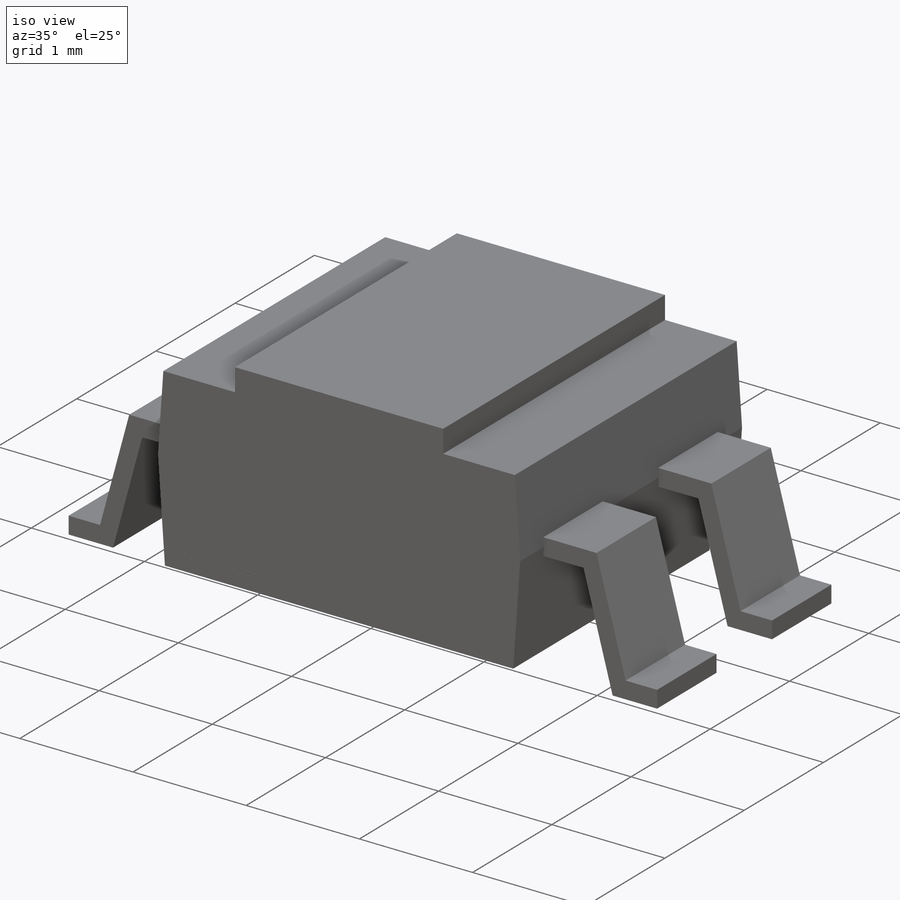
[diagram: iso view]
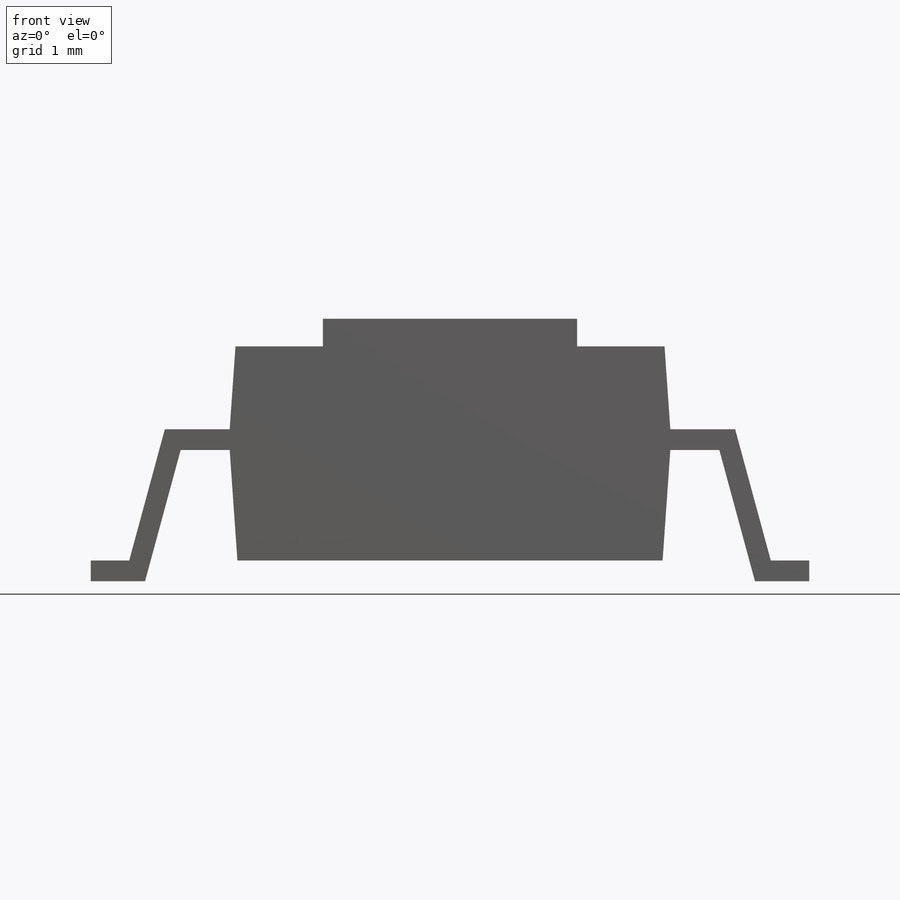
[diagram: front view]
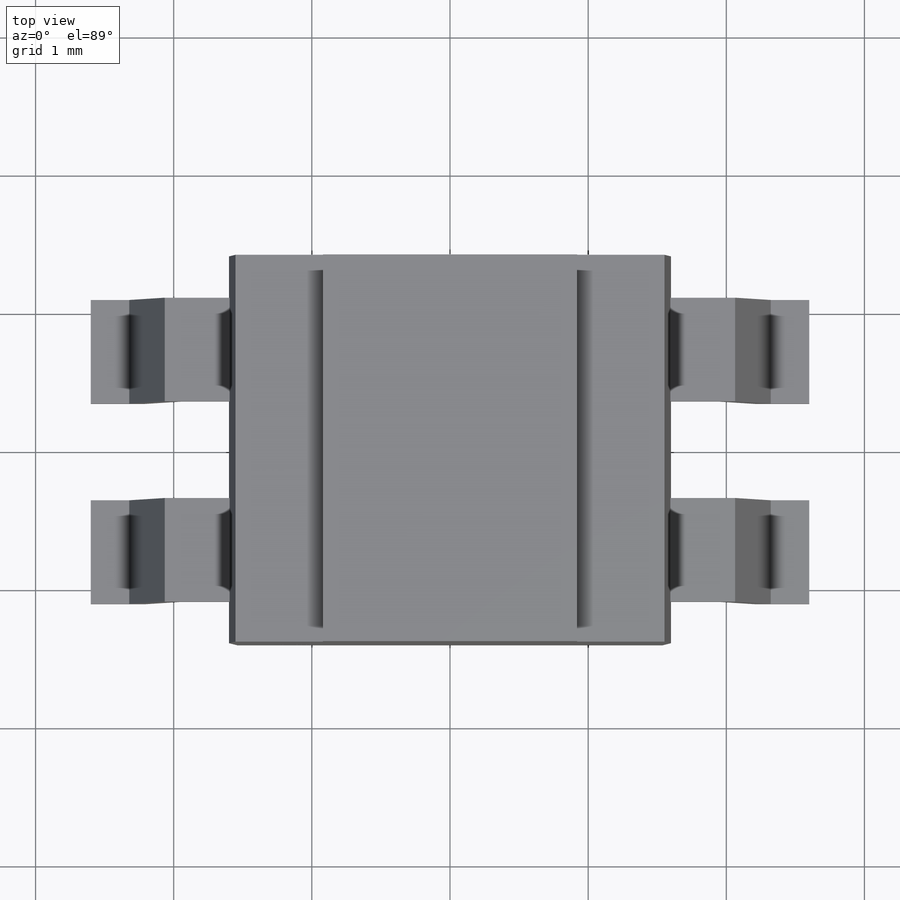
[diagram: top view]
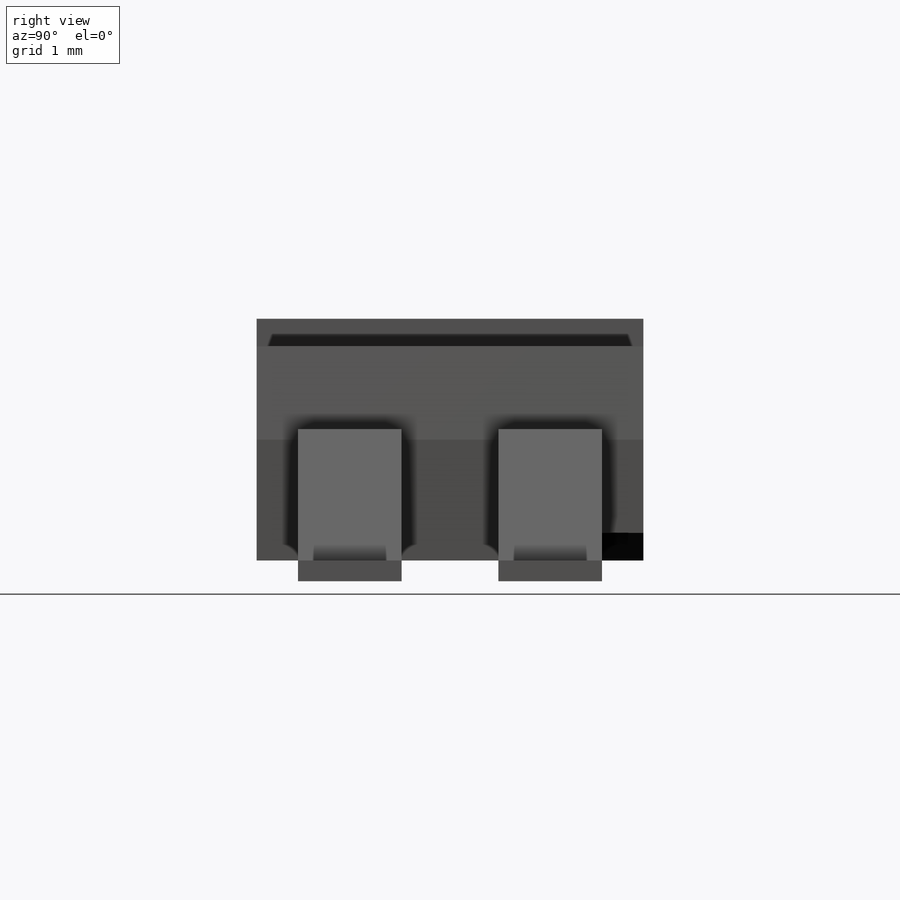
[diagram: right view]
SOLIDWORKS PART (.sldprt)
format: sldprt  version: not decoded by parser v0  size: 602,624 bytes
history: native  units: mm
features: sketch x6, extrude x3, plane x3, cut_extrude x3, material x1 (+11 scaffold rows collapsed)
feature tree (27):
  scaffold x11  (default folders/planes/origin — collapsed)
  material  "Material <not specified>"
  sketch  "Sketch1"  dims[c1.D9=0.15mm c1.D1=3.2mm c1.D2=~4.291667mm c2.D2=4.0deg c2.D3=0.8mm c2.D4=1.75mm c2.D5=0.36mm c2.D6=2.4mm c3.D5=0.36mm c4.D5=95.0deg c4.D6=~0.361375mm c5.D6=89.0deg c5.D7=1.75mm c5.D8=0.05mm c5.D5=1.1mm c6.D6=0.8mm c6.D5=1.1mm c7.D6=0.8mm c7.D10=0.1mm c7.D5=1.1mm c8.D6=0.8mm c8.D9=3.55mm c8.D5=0.15mm c9.D6=0.15mm c9.D7=0.15mm c9.D8=5.2mm c9.D9=1.9mm c9.D4=~0.883109mm c10.D4=4.0deg c10.D2=0.15mm c10.D5=1.9mm c10.D3=0.8mm c11.D5=1.9mm c11.D8=5.2mm c11.D9=0.2mm c11.D10=0.15mm]
  extrude  "Extrude1"  Depth=2.8mm
  plane  "Plane2"  Offset=1mm
  sketch  "Sketch4"  dims[c1.D1=2.4mm c1.D2=1.4mm c1.D3=~1.64441mm c2.D3=45.0deg c2.D4=1.25mm c3.D3=~0.543911mm c4.D3=45.0deg c4.D4=~0.384603mm c5.D4=45.0deg]
  cut_extrude  "Cut-Extrude2"  Depth=0.2mm
  plane  "Plane3"  Offset=0.35mm
  plane  "Plane4"  Offset=0.35mm
  sketch  "Sketch11"  dims[D1=~2.862427mm]
  cut_extrude  "Cut-Extrude3"  Depth=0.001mm
  cut_extrude  "Cut-Extrude4"  [1 undecoded]
  sketch  "Sketch4<6>"  dims[D3=17.0deg]
  sketch  "Sketch12"
  extrude  "Extrude7"  Depth=0.75mm
  sketch  "Sketch13"
  extrude  "Extrude8"  Depth=0.75mm
decode coverage: 9 of 12 modeling features carry decoded parameters
note: ~ marks probable driven/reference dimensions
note: 1 parameter value undecoded
note: suppression state not decoded; provenance and decode notes live in map.json
